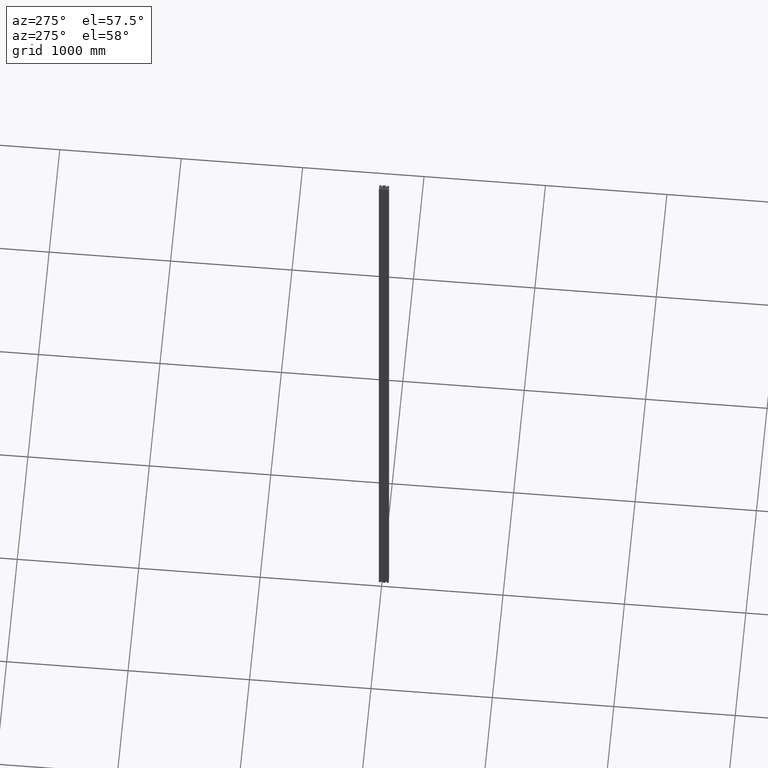
[diagram: clean part render]
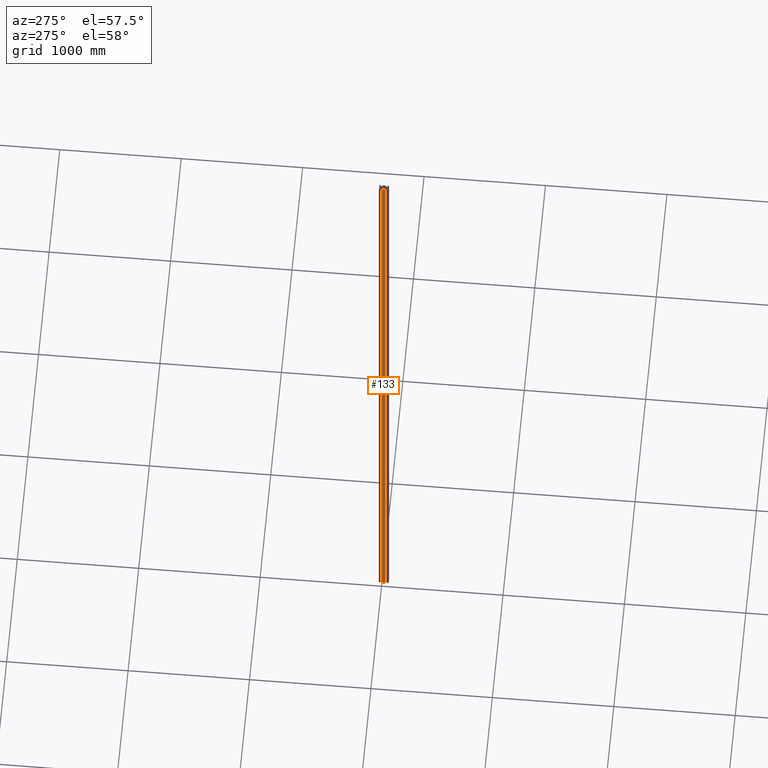
[diagram: same view with one face highlighted and labeled with its STEP entity id]
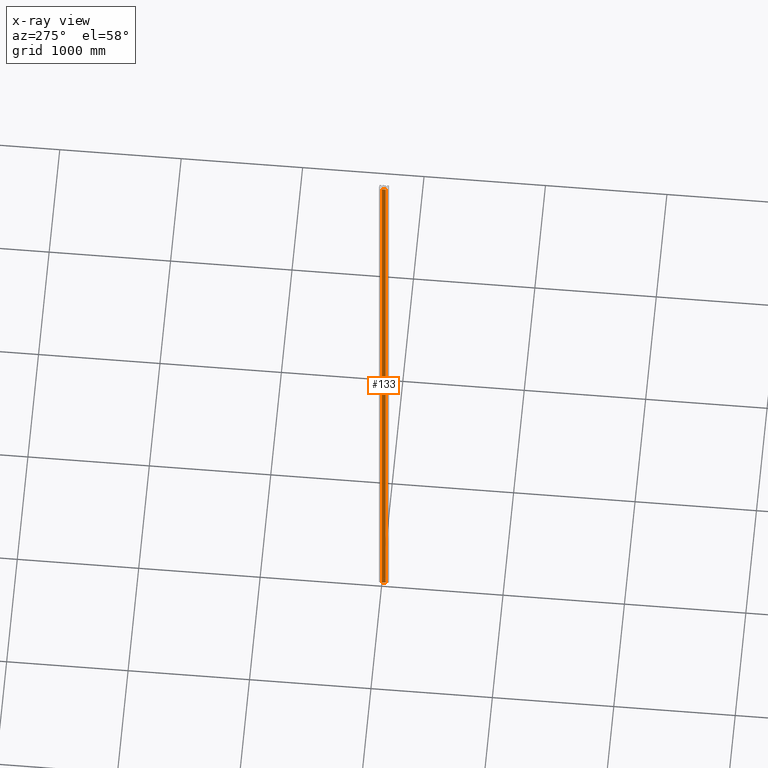
[diagram: x-ray of the same camera — body ghosted, the highlighted face saturated]
A machine part, auxiliary view. The second image highlights one B-rep face of the part: STEP entity #133.
The next image is the same camera in x-ray: the body ghosted, the highlighted face saturated — about 0% of this face is hidden behind the body in this view.
In plain terms, the highlighted planar face has unit normal (-1, 0, 0).
Its self-contained STEP definition (entity closure, byte-faithful):
#15 = PLANE ( 'NONE',  #7600 ) ;
#16 = CARTESIAN_POINT ( 'NONE',  ( -20.00000000000000000, -36.00000000000000700, -6000.000000000000000 ) ) ;
#17 = DIRECTION ( 'NONE',  ( -1.000000000000000000, 0.0000000000000000000, 0.0000000000000000000 ) ) ;
#18 = DIRECTION ( 'NONE',  ( 0.0000000000000000000, 0.0000000000000000000, 1.000000000000000000 ) ) ;
#133 = ADVANCED_FACE ( 'NONE', ( #15643 ), #15, .T. ) ;
#819 = LINE ( 'NONE', #17282, #820 ) ;
#820 = VECTOR ( 'NONE', #17283, 1000.000000000000000 ) ;
#827 = LINE ( 'NONE', #17290, #828 ) ;
#828 = VECTOR ( 'NONE', #17291, 1000.000000000000000 ) ;
#1809 = EDGE_LOOP ( 'NONE', ( #13679, #13680, #13681, #13682 ) ) ;
#5390 = CARTESIAN_POINT ( 'NONE',  ( -20.00000000000000000, -4.000000000000000900, -6000.000000000000000 ) ) ;
#5391 = CARTESIAN_POINT ( 'NONE',  ( -20.00000000000000000, -4.000000000000000900, 0.0000000000000000000 ) ) ;
#5392 = CARTESIAN_POINT ( 'NONE',  ( -20.00000000000000000, -36.00000000000000700, -6000.000000000000000 ) ) ;
#5393 = CARTESIAN_POINT ( 'NONE',  ( -20.00000000000000000, -36.00000000000000700, 0.0000000000000000000 ) ) ;
#5824 = CARTESIAN_POINT ( 'NONE',  ( -20.00000000000000000, -36.00000000000000700, -6000.000000000000000 ) ) ;
#5825 = DIRECTION ( 'NONE',  ( -0.0000000000000000000, -1.000000000000000000, 0.0000000000000000000 ) ) ;
#5828 = CARTESIAN_POINT ( 'NONE',  ( -20.00000000000000000, -60.00000000000000000, 0.0000000000000000000 ) ) ;
#5829 = DIRECTION ( 'NONE',  ( -0.0000000000000000000, -1.000000000000000000, -0.0000000000000000000 ) ) ;
#6112 = LINE ( 'NONE', #5824, #6113 ) ;
#6113 = VECTOR ( 'NONE', #5825, 1000.000000000000000 ) ;
#6116 = LINE ( 'NONE', #5828, #6117 ) ;
#6117 = VECTOR ( 'NONE', #5829, 1000.000000000000000 ) ;
#7505 = EDGE_CURVE ( 'NONE', #15983, #15982, #819, .T. ) ;
#7509 = EDGE_CURVE ( 'NONE', #15984, #15985, #827, .T. ) ;
#7600 = AXIS2_PLACEMENT_3D ( 'NONE', #16, #17, #18 ) ;
#13679 = ORIENTED_EDGE ( 'NONE', *, *, #16200, .T. ) ;
#13680 = ORIENTED_EDGE ( 'NONE', *, *, #7509, .T. ) ;
#13681 = ORIENTED_EDGE ( 'NONE', *, *, #16202, .F. ) ;
#13682 = ORIENTED_EDGE ( 'NONE', *, *, #7505, .T. ) ;
#15643 = FACE_OUTER_BOUND ( 'NONE', #1809, .T. ) ;
#15982 = VERTEX_POINT ( 'NONE', #5390 ) ;
#15983 = VERTEX_POINT ( 'NONE', #5391 ) ;
#15984 = VERTEX_POINT ( 'NONE', #5392 ) ;
#15985 = VERTEX_POINT ( 'NONE', #5393 ) ;
#16200 = EDGE_CURVE ( 'NONE', #15982, #15984, #6112, .T. ) ;
#16202 = EDGE_CURVE ( 'NONE', #15983, #15985, #6116, .T. ) ;
#17282 = CARTESIAN_POINT ( 'NONE',  ( -20.00000000000000000, -4.000000000000000000, -3000.000000000000000 ) ) ;
#17283 = DIRECTION ( 'NONE',  ( -0.0000000000000000000, -0.0000000000000000000, -1.000000000000000000 ) ) ;
#17290 = CARTESIAN_POINT ( 'NONE',  ( -20.00000000000000000, -36.00000000000000700, -3000.000000000000000 ) ) ;
#17291 = DIRECTION ( 'NONE',  ( 0.0000000000000000000, 0.0000000000000000000, 1.000000000000000000 ) ) ;